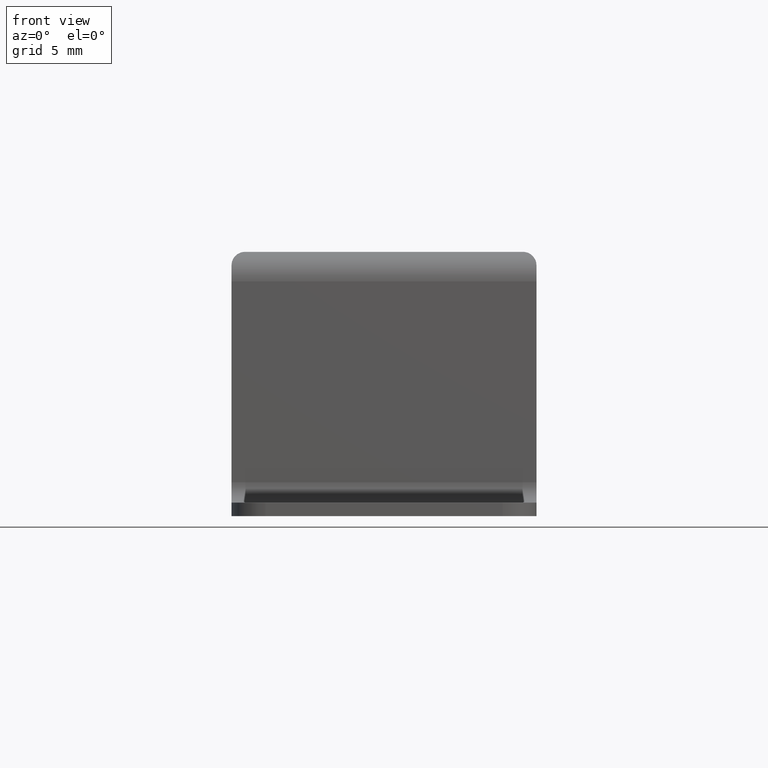
[diagram: clean part render]
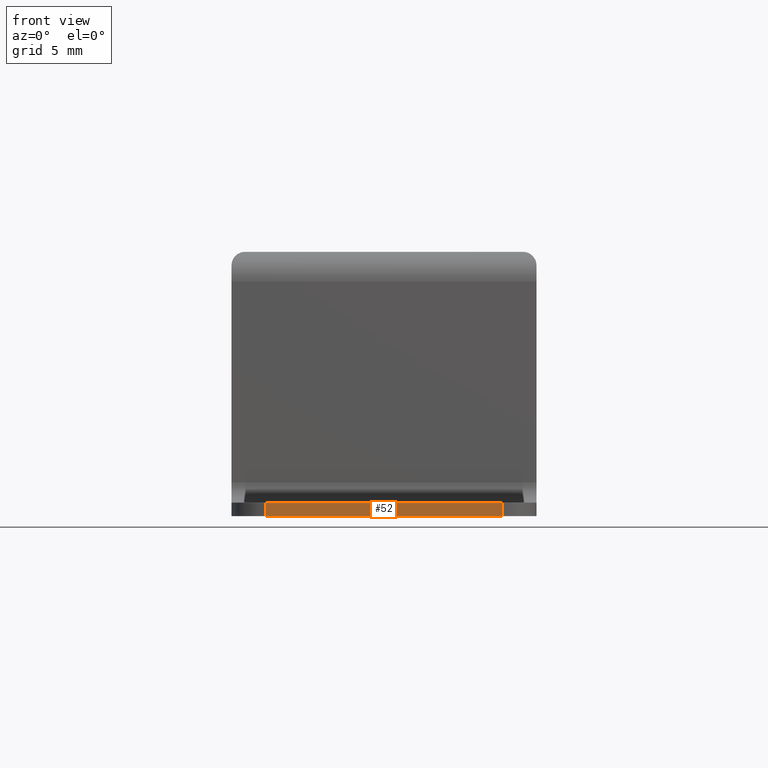
[diagram: same view with one face highlighted and labeled with its STEP entity id]
A machine part, front view. The second image highlights one B-rep face of the part: STEP entity #52.
In plain terms, the highlighted planar face has unit normal (0, -1, 0).
Its self-contained STEP definition (entity closure, byte-faithful):
#52=ADVANCED_FACE('',(#204),#203,.T.);
#203=PLANE('',#543);
#204=FACE_OUTER_BOUND('',#544,.T.);
#540=CARTESIAN_POINT('',(6.00000000000E-01,-4.60000000000E+00,8.00000000000E-02));
#541=DIRECTION('',(0.00000000000E+00,-1.00000000000E+00,0.00000000000E+00));
#542=DIRECTION('',(0.00000000000E+00,0.00000000000E+00,-1.00000000000E+00));
#543=AXIS2_PLACEMENT_3D('',#540,#541,#542);
#544=EDGE_LOOP('',(#764,#765,#766,#767));
#764=ORIENTED_EDGE('',*,*,#957,.T.);
#765=ORIENTED_EDGE('',*,*,#922,.T.);
#766=ORIENTED_EDGE('',*,*,#944,.F.);
#767=ORIENTED_EDGE('',*,*,#920,.T.);
#920=EDGE_CURVE('',#1161,#1175,#1182,.T.);
#922=EDGE_CURVE('',#1196,#1188,#1197,.T.);
#944=EDGE_CURVE('',#1161,#1188,#1340,.T.);
#957=EDGE_CURVE('',#1175,#1196,#1430,.T.);
#1161=VERTEX_POINT('',#1848);
#1175=VERTEX_POINT('',#1857);
#1182=LINE('',#1862,#1863);
#1188=VERTEX_POINT('',#1865);
#1196=VERTEX_POINT('',#1871);
#1197=LINE('',#1872,#1873);
#1340=LINE('',#1956,#1957);
#1430=LINE('',#2011,#2012);
#1848=CARTESIAN_POINT('',(1.60000000000E+01,-4.60000000000E+00,-8.00000000000E-01));
#1857=CARTESIAN_POINT('',(1.60000000000E+01,-4.60000000000E+00,-1.42108547152E-14));
#1862=CARTESIAN_POINT('',(1.60000000000E+01,-4.60000000000E+00,-8.00000000000E-01));
#1863=VECTOR('',#1864,8.00000000000E-01);
#1864=DIRECTION('',(0.00000000000E+00,0.00000000000E+00,1.00000000000E+00));
#1865=CARTESIAN_POINT('',(2.00000000000E+00,-4.60000000000E+00,-8.00000000000E-01));
#1871=CARTESIAN_POINT('',(2.00000000000E+00,-4.60000000000E+00,-1.42108547152E-14));
#1872=CARTESIAN_POINT('',(2.00000000000E+00,-4.60000000000E+00,-1.42108547152E-14));
#1873=VECTOR('',#1874,8.00000000000E-01);
#1874=DIRECTION('',(0.00000000000E+00,0.00000000000E+00,-1.00000000000E+00));
#1956=CARTESIAN_POINT('',(1.60000000000E+01,-4.60000000000E+00,-8.00000000000E-01));
#1957=VECTOR('',#1958,1.40000000000E+01);
#1958=DIRECTION('',(-1.00000000000E+00,0.00000000000E+00,0.00000000000E+00));
#2011=CARTESIAN_POINT('',(1.60000000000E+01,-4.60000000000E+00,-1.42108547152E-14));
#2012=VECTOR('',#2013,1.40000000000E+01);
#2013=DIRECTION('',(-1.00000000000E+00,0.00000000000E+00,0.00000000000E+00));